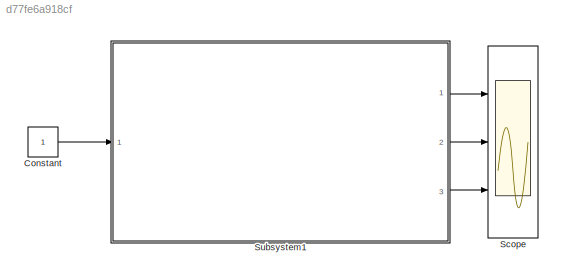
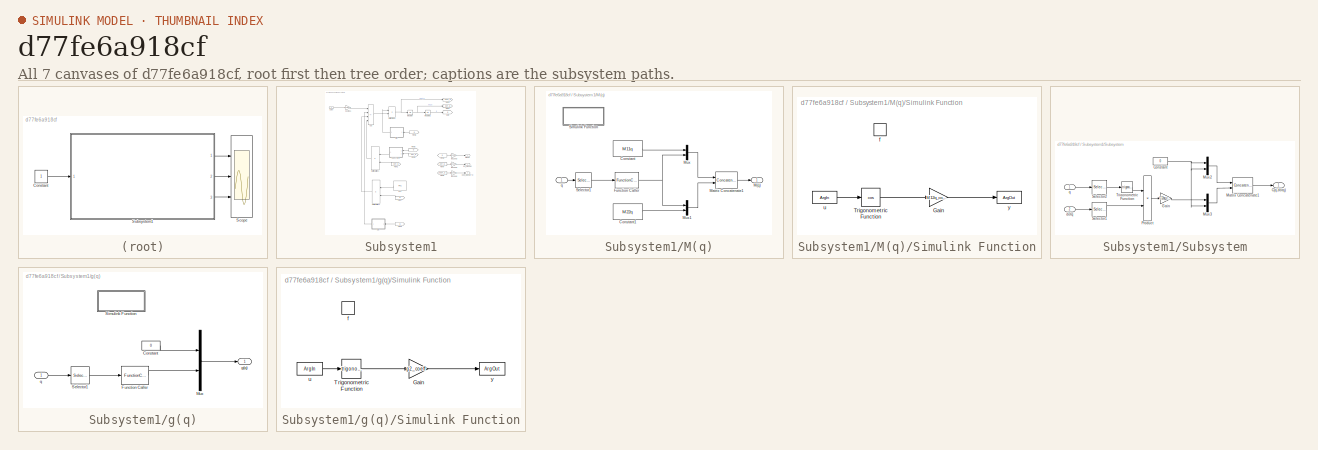
[diagram: thumbnail index - all 7 canvases of the model, root first then tree order]
MODEL slx_d77fe6a918cf
KIND model
CONFIG AbsTol = auto
CONFIG EnableMultiTasking = off
CONFIG FixedStep = auto
CONFIG MaxStep = auto
CONFIG MinStep = auto
CONFIG RelTol = 1e-3
CONFIG SampleTimeConstraint = Unconstrained
CONFIG SolverName = ode3
CONFIG StartTime = 0.0
CONFIG StopTime = 10.0
BLOCK [Constant] Constant
BLOCK [Scope] Scope
  Floating = off
  NumInputPorts = 3
  Ports = [3]
  ScopeSpecificationString = Simulink.scopes.TimeScopeBlockCfg('CurrentConfiguration', extmgr.ConfigurationSet(extmgr.Configuration('Core','General UI',true),extmgr.Configuration('Core','Source UI',true),extmgr.Configuration('Sources','WiredSimulink',true),extmgr.Configuration('Visuals','Time Domain',true),extmgr.Configuration('Tools','Plot Navigation',true),extmgr.Configuration('Tools','Measurements',true)),'Version','2020b'...<+1ch>
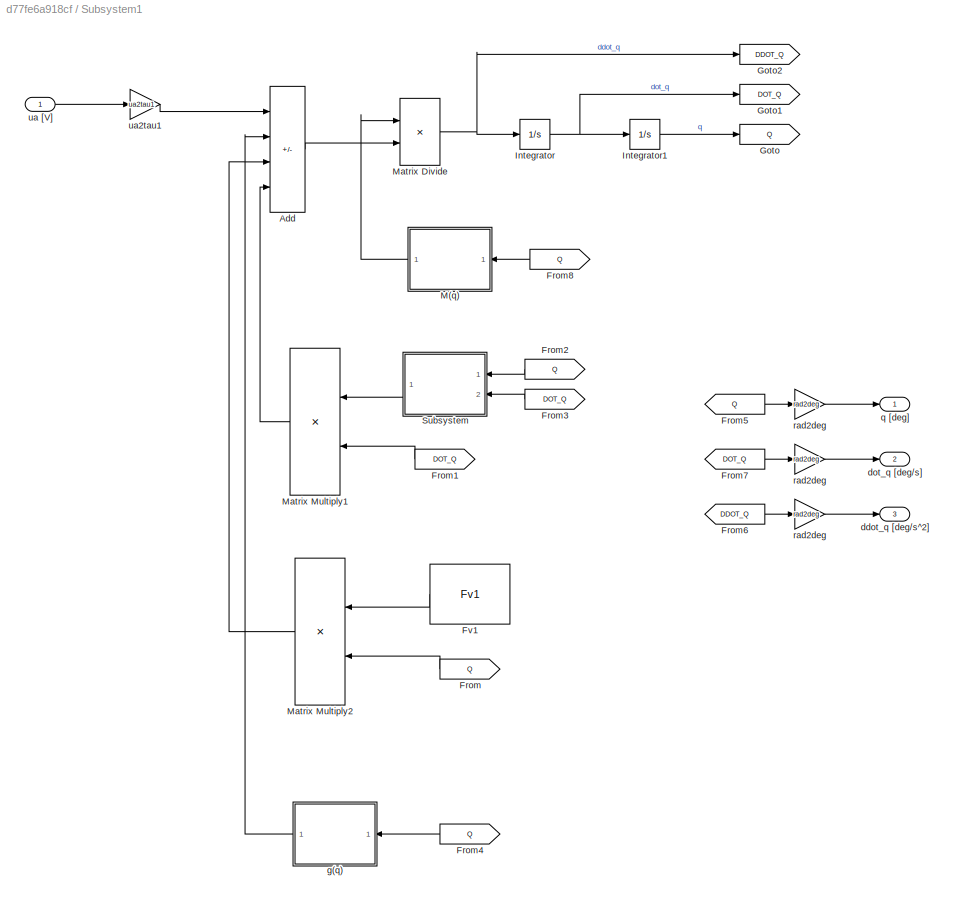
BLOCK [SubSystem] Subsystem1
  Ports = [1, 3]
  RequestExecContextInheritance = off
BLOCK [Sum] Subsystem1/Add
  IconShape = rectangular
  Inputs = +---
  Ports = [4, 1]
BLOCK [From] Subsystem1/From
  GotoTag = Q
BLOCK [From] Subsystem1/From1
  GotoTag = DOT_Q
BLOCK [From] Subsystem1/From2
  GotoTag = Q
BLOCK [From] Subsystem1/From3
  GotoTag = DOT_Q
BLOCK [From] Subsystem1/From4
  GotoTag = Q
BLOCK [From] Subsystem1/From5
  GotoTag = Q
BLOCK [From] Subsystem1/From6
  GotoTag = DDOT_Q
BLOCK [From] Subsystem1/From7
  GotoTag = DOT_Q
BLOCK [From] Subsystem1/From8
  GotoTag = Q
BLOCK [Constant] Subsystem1/Fv1
  Value = Fv1
BLOCK [Goto] Subsystem1/Goto
  GotoTag = Q
BLOCK [Goto] Subsystem1/Goto1
  GotoTag = DOT_Q
BLOCK [Goto] Subsystem1/Goto2
  GotoTag = DDOT_Q
BLOCK [Integrator] Subsystem1/Integrator
  Ports = [1, 1]
BLOCK [Integrator] Subsystem1/Integrator1
  Ports = [1, 1]
BLOCK [SubSystem] Subsystem1/M(q)
  Ports = [1, 1]
  RequestExecContextInheritance = off
BLOCK [Constant] Subsystem1/M(q)/Constant
  Value = M11q
BLOCK [Constant] Subsystem1/M(q)/Constant1
  Value = M22q
BLOCK [FunctionCaller] Subsystem1/M(q)/Function Caller
  FunctionPrototype = y = M12q(u)
  InputArgumentSpecifications = <Enter example>
  OutputArgumentSpecifications = <Enter example>
  Ports = [1, 1]
BLOCK [Outport] Subsystem1/M(q)/M(q)
BLOCK [Concatenate] Subsystem1/M(q)/Matrix Concatenate1
  ConcatenateDimension = 2
  Mode = Multidimensional array
  Ports = [2, 1]
BLOCK [Mux] Subsystem1/M(q)/Mux
  DisplayOption = bar
  Inputs = 2
  Ports = [2, 1]
BLOCK [Mux] Subsystem1/M(q)/Mux1
  DisplayOption = bar
  Inputs = 2
  Ports = [2, 1]
BLOCK [Selector] Subsystem1/M(q)/Selector1
  IndexOptions = Index vector (dialog)
  Indices = 2
  InputPortWidth = 2
  OutputSizes = 1
  Ports = [1, 1]
BLOCK [SubSystem] Subsystem1/M(q)/Simulink Function
  Ports = [0, 0, 0, 1]
  RequestExecContextInheritance = off
  TreatAsAtomicUnit = on
BLOCK [Gain] Subsystem1/M(q)/Simulink Function/Gain
  Gain = M12q_coeff
BLOCK [Trigonometry] Subsystem1/M(q)/Simulink Function/Trigonometric Function
  Operator = cos
  Ports = [1, 1]
BLOCK [TriggerPort] Subsystem1/M(q)/Simulink Function/f
  FunctionName = M12q
  FunctionVisibility = scoped
  IsSimulinkFunction = on
  Ports = []
  StatesWhenEnabling = held
  TriggerType = function-call
  VariantControl = (inherit)
BLOCK [ArgIn] Subsystem1/M(q)/Simulink Function/u
  ArgumentName = u
  DisableCoverage = on
BLOCK [ArgOut] Subsystem1/M(q)/Simulink Function/y
  ArgumentName = y
  DisableCoverage = on
BLOCK [Inport] Subsystem1/M(q)/q
BLOCK [Product] Subsystem1/Matrix Divide
  Inputs = /*
  Multiplication = Matrix(*)
  Ports = [2, 1]
BLOCK [Product] Subsystem1/Matrix Multiply1
  Multiplication = Matrix(*)
  Ports = [2, 1]
BLOCK [Product] Subsystem1/Matrix Multiply2
  Multiplication = Matrix(*)
  Ports = [2, 1]
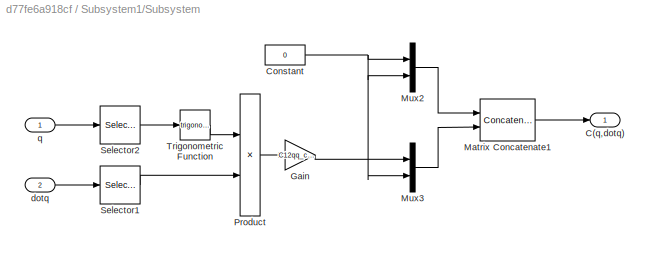
BLOCK [SubSystem] Subsystem1/Subsystem
  Ports = [2, 1]
  RequestExecContextInheritance = off
BLOCK [Outport] Subsystem1/Subsystem/C(q,dotq)
BLOCK [Constant] Subsystem1/Subsystem/Constant
  Value = 0
BLOCK [Gain] Subsystem1/Subsystem/Gain
  Gain = C12qq_coeff
BLOCK [Concatenate] Subsystem1/Subsystem/Matrix Concatenate1
  ConcatenateDimension = 2
  Mode = Multidimensional array
  Ports = [2, 1]
BLOCK [Mux] Subsystem1/Subsystem/Mux2
  DisplayOption = bar
  Inputs = 2
  Ports = [2, 1]
BLOCK [Mux] Subsystem1/Subsystem/Mux3
  DisplayOption = bar
  Inputs = 2
  Ports = [2, 1]
BLOCK [Product] Subsystem1/Subsystem/Product
  Ports = [2, 1]
BLOCK [Selector] Subsystem1/Subsystem/Selector1
  IndexOptions = Index vector (dialog)
  Indices = 2
  InputPortWidth = 2
  OutputSizes = 1
  Ports = [1, 1]
BLOCK [Selector] Subsystem1/Subsystem/Selector2
  IndexOptions = Index vector (dialog)
  Indices = 2
  InputPortWidth = 2
  OutputSizes = 1
  Ports = [1, 1]
BLOCK [Trigonometry] Subsystem1/Subsystem/Trigonometric Function
  Ports = [1, 1]
BLOCK [Inport] Subsystem1/Subsystem/dotq
  Port = 2
BLOCK [Inport] Subsystem1/Subsystem/q
BLOCK [Outport] Subsystem1/ddot_q [deg//s^2]
  Port = 3
BLOCK [Outport] Subsystem1/dot_q [deg//s]
  Port = 2
BLOCK [SubSystem] Subsystem1/g(q)
  Ports = [1, 1]
  RequestExecContextInheritance = off
BLOCK [Constant] Subsystem1/g(q)/Constant
  Value = 0
BLOCK [FunctionCaller] Subsystem1/g(q)/Function Caller
  FunctionPrototype = y = g2(u)
  InputArgumentSpecifications = <Enter example>
  OutputArgumentSpecifications = <Enter example>
  Ports = [1, 1]
BLOCK [Mux] Subsystem1/g(q)/Mux
  DisplayOption = bar
  Inputs = 2
  Ports = [2, 1]
BLOCK [Selector] Subsystem1/g(q)/Selector1
  IndexOptions = Index vector (dialog)
  Indices = 2
  InputPortWidth = 2
  OutputSizes = 1
  Ports = [1, 1]
BLOCK [SubSystem] Subsystem1/g(q)/Simulink Function
  Ports = [0, 0, 0, 1]
  RequestExecContextInheritance = off
  TreatAsAtomicUnit = on
BLOCK [Gain] Subsystem1/g(q)/Simulink Function/Gain
  Gain = g2_coeff
BLOCK [Trigonometry] Subsystem1/g(q)/Simulink Function/Trigonometric Function
  Ports = [1, 1]
BLOCK [TriggerPort] Subsystem1/g(q)/Simulink Function/f
  FunctionName = g2
  FunctionVisibility = scoped
  IsSimulinkFunction = on
  Ports = []
  StatesWhenEnabling = held
  TriggerType = function-call
  VariantControl = (inherit)
BLOCK [ArgIn] Subsystem1/g(q)/Simulink Function/u
  ArgumentName = u
  DisableCoverage = on
BLOCK [ArgOut] Subsystem1/g(q)/Simulink Function/y
  ArgumentName = y
  DisableCoverage = on
BLOCK [Outport] Subsystem1/g(q)/g(q)
BLOCK [Inport] Subsystem1/g(q)/q
BLOCK [Outport] Subsystem1/q [deg]
BLOCK [Gain] Subsystem1/rad2deg
  Gain = rad2deg
BLOCK [Gain] Subsystem1/rad2deg 
  Gain = rad2deg
BLOCK [Gain] Subsystem1/rad2deg  
  Gain = rad2deg
BLOCK [Inport] Subsystem1/ua [V]
BLOCK [Gain] Subsystem1/ua2tau1
  Gain = ua2tau1
LINE Constant:1 -> Subsystem1:1
LINE Subsystem1/Add:1 -> Subsystem1/Matrix Divide:2
LINE Subsystem1/From1:1 -> Subsystem1/Matrix Multiply1:2
LINE Subsystem1/From2:1 -> Subsystem1/Subsystem:1
LINE Subsystem1/From3:1 -> Subsystem1/Subsystem:2
LINE Subsystem1/From4:1 -> Subsystem1/g(q):1
LINE Subsystem1/From5:1 -> Subsystem1/rad2deg:1
LINE Subsystem1/From6:1 -> Subsystem1/rad2deg :1
LINE Subsystem1/From7:1 -> Subsystem1/rad2deg  :1
LINE Subsystem1/From8:1 -> Subsystem1/M(q):1
LINE Subsystem1/From:1 -> Subsystem1/Matrix Multiply2:2
LINE Subsystem1/Fv1:1 -> Subsystem1/Matrix Multiply2:1
LINE Subsystem1/Integrator1:1 -> Subsystem1/Goto:1
NET Subsystem1/Integrator:1 -> Subsystem1/Goto1:1, Subsystem1/Integrator1:1
LINE Subsystem1/M(q)/Constant1:1 -> Subsystem1/M(q)/Mux1:2
LINE Subsystem1/M(q)/Constant:1 -> Subsystem1/M(q)/Mux:1
NET Subsystem1/M(q)/Function Caller:1 -> Subsystem1/M(q)/Mux1:1, Subsystem1/M(q)/Mux:2
LINE Subsystem1/M(q)/Matrix Concatenate1:1 -> Subsystem1/M(q)/M(q):1
LINE Subsystem1/M(q)/Mux1:1 -> Subsystem1/M(q)/Matrix Concatenate1:2
LINE Subsystem1/M(q)/Mux:1 -> Subsystem1/M(q)/Matrix Concatenate1:1
LINE Subsystem1/M(q)/Selector1:1 -> Subsystem1/M(q)/Function Caller:1
LINE Subsystem1/M(q)/Simulink Function/Gain:1 -> Subsystem1/M(q)/Simulink Function/y:1
LINE Subsystem1/M(q)/Simulink Function/Trigonometric Function:1 -> Subsystem1/M(q)/Simulink Function/Gain:1
LINE Subsystem1/M(q)/Simulink Function/u:1 -> Subsystem1/M(q)/Simulink Function/Trigonometric Function:1
LINE Subsystem1/M(q)/q:1 -> Subsystem1/M(q)/Selector1:1
LINE Subsystem1/M(q):1 -> Subsystem1/Matrix Divide:1
NET Subsystem1/Matrix Divide:1 -> Subsystem1/Goto2:1, Subsystem1/Integrator:1
LINE Subsystem1/Matrix Multiply1:1 -> Subsystem1/Add:4
LINE Subsystem1/Matrix Multiply2:1 -> Subsystem1/Add:3
NET Subsystem1/Subsystem/Constant:1 -> Subsystem1/Subsystem/Mux2:1, Subsystem1/Subsystem/Mux2:2, Subsystem1/Subsystem/Mux3:2
LINE Subsystem1/Subsystem/Gain:1 -> Subsystem1/Subsystem/Mux3:1
LINE Subsystem1/Subsystem/Matrix Concatenate1:1 -> Subsystem1/Subsystem/C(q,dotq):1
LINE Subsystem1/Subsystem/Mux2:1 -> Subsystem1/Subsystem/Matrix Concatenate1:1
LINE Subsystem1/Subsystem/Mux3:1 -> Subsystem1/Subsystem/Matrix Concatenate1:2
LINE Subsystem1/Subsystem/Product:1 -> Subsystem1/Subsystem/Gain:1
LINE Subsystem1/Subsystem/Selector1:1 -> Subsystem1/Subsystem/Product:2
LINE Subsystem1/Subsystem/Selector2:1 -> Subsystem1/Subsystem/Trigonometric Function:1
LINE Subsystem1/Subsystem/Trigonometric Function:1 -> Subsystem1/Subsystem/Product:1
LINE Subsystem1/Subsystem/dotq:1 -> Subsystem1/Subsystem/Selector1:1
LINE Subsystem1/Subsystem/q:1 -> Subsystem1/Subsystem/Selector2:1
LINE Subsystem1/Subsystem:1 -> Subsystem1/Matrix Multiply1:1
LINE Subsystem1/g(q)/Constant:1 -> Subsystem1/g(q)/Mux:1
LINE Subsystem1/g(q)/Function Caller:1 -> Subsystem1/g(q)/Mux:2
LINE Subsystem1/g(q)/Mux:1 -> Subsystem1/g(q)/g(q):1
LINE Subsystem1/g(q)/Selector1:1 -> Subsystem1/g(q)/Function Caller:1
LINE Subsystem1/g(q)/Simulink Function/Gain:1 -> Subsystem1/g(q)/Simulink Function/y:1
LINE Subsystem1/g(q)/Simulink Function/Trigonometric Function:1 -> Subsystem1/g(q)/Simulink Function/Gain:1
LINE Subsystem1/g(q)/Simulink Function/u:1 -> Subsystem1/g(q)/Simulink Function/Trigonometric Function:1
LINE Subsystem1/g(q)/q:1 -> Subsystem1/g(q)/Selector1:1
LINE Subsystem1/g(q):1 -> Subsystem1/Add:2
LINE Subsystem1/rad2deg  :1 -> Subsystem1/dot_q [deg//s]:1
LINE Subsystem1/rad2deg :1 -> Subsystem1/ddot_q [deg//s^2]:1
LINE Subsystem1/rad2deg:1 -> Subsystem1/q [deg]:1
LINE Subsystem1/ua [V]:1 -> Subsystem1/ua2tau1:1
LINE Subsystem1/ua2tau1:1 -> Subsystem1/Add:1
LINE Subsystem1:1 -> Scope:1
LINE Subsystem1:2 -> Scope:2
LINE Subsystem1:3 -> Scope:3
note: NET lines group one-source signal fan-out (src -> all destinations, sorted); 1:1 wires keep LINE
